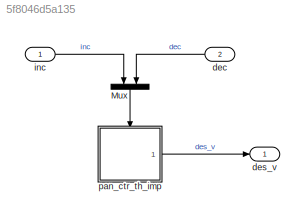
MODEL slx_5f8046d5a135
KIND model
CONFIG AbsTol = auto
CONFIG EnableMultiTasking = off
CONFIG FixedStep = auto
CONFIG MaxStep = auto
CONFIG MinStep = auto
CONFIG RelTol = 1e-3
CONFIG SampleTimeConstraint = Unconstrained
CONFIG Solver = VariableStepAuto
CONFIG SolverName = VariableStepAuto
CONFIG StartTime = 0.0
CONFIG StopTime = 10.0
BLOCK [Mux] Mux
  DisplayOption = bar
  Inputs = 2
  Ports = [2, 1]
BLOCK [Inport] dec
  IconDisplay = Port number
  Port = 2
BLOCK [Outport] des_v
  IconDisplay = Port number
BLOCK [Inport] inc
  IconDisplay = Port number
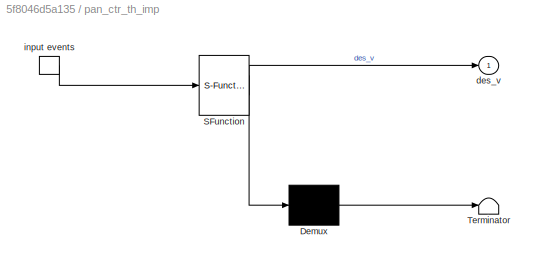
BLOCK [SubSystem] pan_ctr_th_imp
  ErrorFcn = Stateflow.Translate.translate
  PermitHierarchicalResolution = ExplicitOnly
  Ports = [0, 1, 0, 1]
  RequestExecContextInheritance = off
  SFBlockType = Chart
  TreatAsAtomicUnit = on
BLOCK [Demux] pan_ctr_th_imp/ Demux 
  Outputs = 1
  Ports = [1, 1]
BLOCK [S-Function] pan_ctr_th_imp/ SFunction 
  EnableBusSupport = on
  FunctionName = sf_sfun
  PortCounts = [1 2]
  Ports = [1, 2]
  SFcnIsStateOwnerBlock = off
  SFunctionDeploymentMode = off
  Tag = Stateflow S-Function pan_ctr_th_imp 3
BLOCK [Terminator] pan_ctr_th_imp/ Terminator 
BLOCK [Outport] pan_ctr_th_imp/des_v
  IconDisplay = Port number
BLOCK [TriggerPort] pan_ctr_th_imp/input events
  Ports = [0, 1]
  ShowOutputPort = on
  StatesWhenEnabling = held
  TriggerType = either
  VariantControl = (inherit)
LINE Mux:1 -> pan_ctr_th_imp:trigger
LINE dec:1 -> Mux:2
LINE inc:1 -> Mux:1
LINE pan_ctr_th_imp:1 -> des_v:1
CHART pan_ctr_th_imp states=1 transitions=3
  STATE_LABEL 'update'
